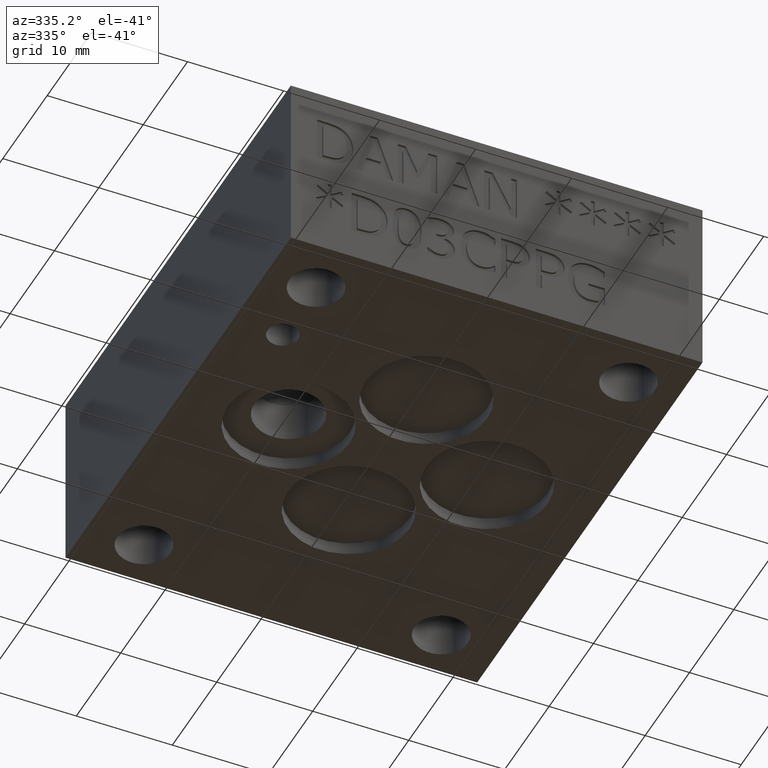
[diagram: clean part render]
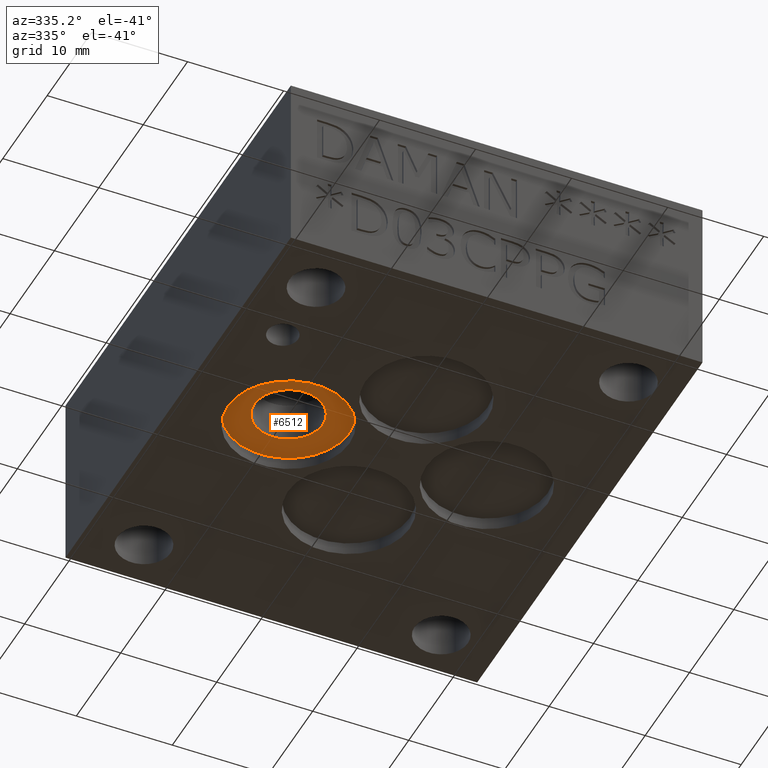
[diagram: same view with one face highlighted and labeled with its STEP entity id]
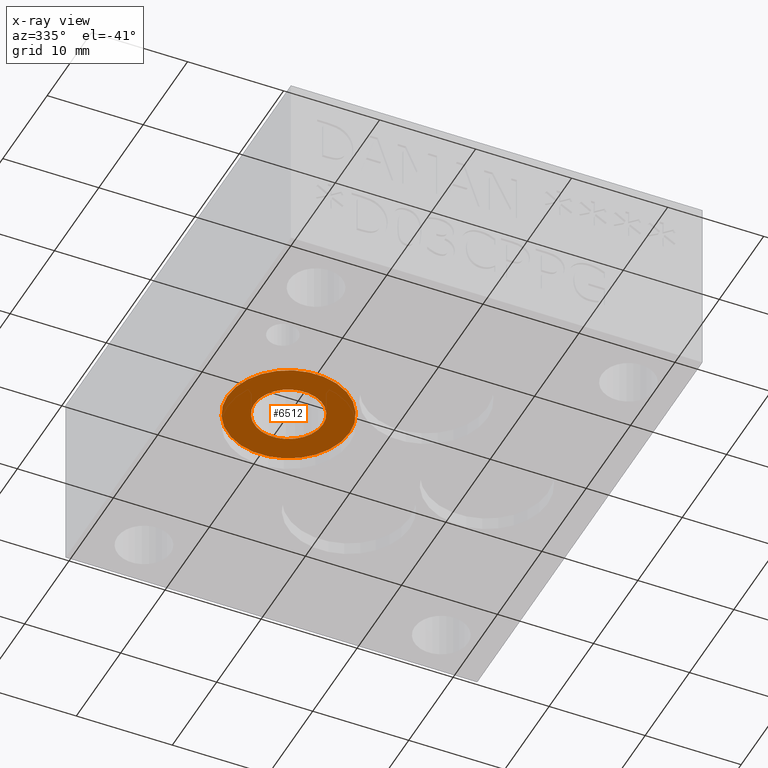
[diagram: x-ray of the same camera — body ghosted, the highlighted face saturated]
A machine part, auxiliary view. The second image highlights one B-rep face of the part: STEP entity #6512.
The next image is the same camera in x-ray: the body ghosted, the highlighted face saturated — about 0% of this face is hidden behind the body in this view.
In plain terms, the highlighted planar face has unit normal (0, 0, 1).
Its self-contained STEP definition (entity closure, byte-faithful):
#49=CIRCLE('',#6792,0.1405);
#50=CIRCLE('',#6794,0.25);
#51=CIRCLE('',#6795,0.25);
#97=FACE_BOUND('',#906,.T.);
#534=FACE_OUTER_BOUND('',#905,.T.);
#905=EDGE_LOOP('',(#5873,#5874));
#906=EDGE_LOOP('',(#5875));
#3132=VERTEX_POINT('',#11536);
#3133=VERTEX_POINT('',#11540);
#3134=VERTEX_POINT('',#11541);
#4059=EDGE_CURVE('',#3132,#3132,#49,.T.);
#4060=EDGE_CURVE('',#3133,#3134,#50,.T.);
#4061=EDGE_CURVE('',#3134,#3133,#51,.T.);
#5873=ORIENTED_EDGE('',*,*,#4060,.T.);
#5874=ORIENTED_EDGE('',*,*,#4061,.T.);
#5875=ORIENTED_EDGE('',*,*,#4059,.T.);
#6179=PLANE('',#6793);
#6512=ADVANCED_FACE('',(#534,#97),#6179,.F.);
#6792=AXIS2_PLACEMENT_3D('',#11538,#8001,#8002);
#6793=AXIS2_PLACEMENT_3D('',#11539,#8003,#8004);
#6794=AXIS2_PLACEMENT_3D('',#11542,#8005,#8006);
#6795=AXIS2_PLACEMENT_3D('',#11543,#8007,#8008);
#8001=DIRECTION('center_axis',(0.,0.,1.));
#8002=DIRECTION('ref_axis',(1.,0.,0.));
#8003=DIRECTION('center_axis',(0.,0.,1.));
#8004=DIRECTION('ref_axis',(1.,0.,0.));
#8005=DIRECTION('center_axis',(0.,0.,-1.));
#8006=DIRECTION('ref_axis',(1.,0.,0.));
#8007=DIRECTION('center_axis',(0.,0.,-1.));
#8008=DIRECTION('ref_axis',(1.,0.,0.));
#11536=CARTESIAN_POINT('',(0.2975,0.968,0.052));
#11538=CARTESIAN_POINT('Origin',(0.438,0.968,0.052));
#11539=CARTESIAN_POINT('Origin',(0.563,0.968,0.052));
#11540=CARTESIAN_POINT('',(0.688,0.968,0.052));
#11541=CARTESIAN_POINT('',(0.188,0.968,0.052));
#11542=CARTESIAN_POINT('Origin',(0.438,0.968,0.052));
#11543=CARTESIAN_POINT('Origin',(0.438,0.968,0.052));